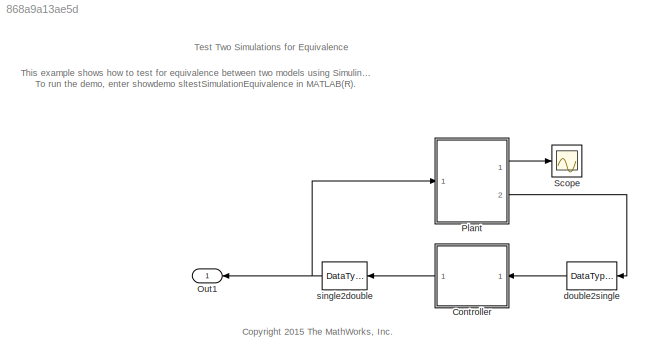
MODEL slx_868a9a13ae5d
KIND model
CONFIG AbsTol = auto
CONFIG FixedStep = 0.01
CONFIG MaxStep = auto
CONFIG MinStep = auto
CONFIG RelTol = 1e-3
CONFIG SampleTimeConstraint = Unconstrained
CONFIG Solver = ode3
CONFIG SolverMode = Auto
CONFIG SolverName = ode3
CONFIG StartTime = 0.0
CONFIG StopTime = 10
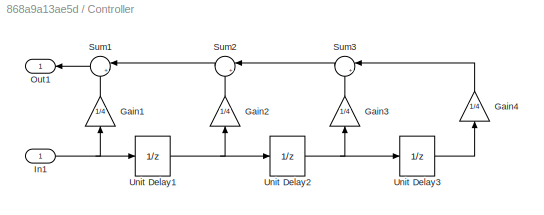
BLOCK [SubSystem] Controller
  PermitHierarchicalResolution = ExplicitOnly
  Ports = [1, 1]
  RTWFcnNameOpts = Use subsystem name
  RTWFileNameOpts = Use function name
  RequestExecContextInheritance = off
  TreatAsAtomicUnit = on
  Variant = off
BLOCK [Gain] Controller/Gain1
  Gain = 1/4
  OutDataTypeStr = Inherit: Inherit via internal rule
BLOCK [Gain] Controller/Gain2
  Gain = 1/4
  OutDataTypeStr = Inherit: Inherit via internal rule
BLOCK [Gain] Controller/Gain3
  Gain = 1/4
  OutDataTypeStr = Inherit: Inherit via internal rule
BLOCK [Gain] Controller/Gain4
  Gain = 1/4
  OutDataTypeStr = Inherit: Inherit via internal rule
BLOCK [Inport] Controller/In1
  IconDisplay = Port number
  SampleTime = .01
BLOCK [Outport] Controller/Out1
  IconDisplay = Port number
BLOCK [Sum] Controller/Sum1
  IconShape = round
  Inputs = |++
  Ports = [2, 1]
BLOCK [Sum] Controller/Sum2
  IconShape = round
  Inputs = |++
  Ports = [2, 1]
BLOCK [Sum] Controller/Sum3
  IconShape = round
  Inputs = |++
  Ports = [2, 1]
BLOCK [UnitDelay] Controller/Unit Delay1
  SampleTime = -1
BLOCK [UnitDelay] Controller/Unit Delay2
  SampleTime = -1
BLOCK [UnitDelay] Controller/Unit Delay3
  SampleTime = -1
BLOCK [Outport] Out1
  IconDisplay = Port number
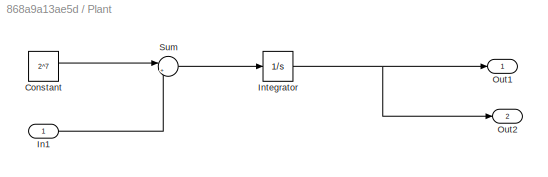
BLOCK [SubSystem] Plant
  PermitHierarchicalResolution = ExplicitOnly
  Ports = [1, 2]
  RequestExecContextInheritance = off
  Variant = off
BLOCK [Constant] Plant/Constant
  Value = 2^7
BLOCK [Inport] Plant/In1
  IconDisplay = Port number
BLOCK [Integrator] Plant/Integrator
  Ports = [1, 1]
BLOCK [Outport] Plant/Out1
  IconDisplay = Port number
BLOCK [Outport] Plant/Out2
  IconDisplay = Port number
  Port = 2
BLOCK [Sum] Plant/Sum
  IconShape = round
  Inputs = |+-
  Ports = [2, 1]
BLOCK [Scope] Scope
  Ports = [1]
  ScopeSpecificationString = Simulink.scopes.TimeScopeBlockCfg('CurrentConfiguration', extmgr.ConfigurationSet(extmgr.Configuration('Core','General UI',true),extmgr.Configuration('Core','Source UI',true),extmgr.Configuration('Sources','WiredSimulink',true,'DataLoggingSaveFormat','StructureWithTime','DataLoggingLimitDataPoints',true,'DataLoggingDecimation','1'),extmgr.Configuration('Visuals','Time Domain',true,'SerializedDispl...<+1586ch>
BLOCK [DataTypeConversion] double2single
  OutDataTypeStr = single
  RndMeth = Floor
  SaturateOnIntegerOverflow = off
BLOCK [DataTypeConversion] single2double
  OutDataTypeStr = double
  RndMeth = Floor
  SaturateOnIntegerOverflow = off
ANNOTATION (root): This example shows how to test for equivalence between two models using Simulink Test. To run the demo, enter showdemo sltestSimulationEquivalence in MATLAB(R).
ANNOTATION (root): Test Two Simulations for Equivalence
ANNOTATION (root): <copyright redacted>
LINE Controller/Gain1:1 -> Controller/Sum1:2
LINE Controller/Gain2:1 -> Controller/Sum2:2
LINE Controller/Gain3:1 -> Controller/Sum3:2
LINE Controller/Gain4:1 -> Controller/Sum3:1
NET Controller/In1:1 -> Controller/Gain1:1, Controller/Unit Delay1:1
LINE Controller/Sum1:1 -> Controller/Out1:1
LINE Controller/Sum2:1 -> Controller/Sum1:1
LINE Controller/Sum3:1 -> Controller/Sum2:1
NET Controller/Unit Delay1:1 -> Controller/Gain2:1, Controller/Unit Delay2:1
NET Controller/Unit Delay2:1 -> Controller/Gain3:1, Controller/Unit Delay3:1
LINE Controller/Unit Delay3:1 -> Controller/Gain4:1
LINE Controller:1 -> single2double:1
LINE Plant/Constant:1 -> Plant/Sum:1
LINE Plant/In1:1 -> Plant/Sum:2
NET Plant/Integrator:1 -> Plant/Out1:1, Plant/Out2:1
LINE Plant/Sum:1 -> Plant/Integrator:1
LINE Plant:1 -> Scope:1
LINE Plant:2 -> double2single:1
LINE double2single:1 -> Controller:1
NET single2double:1 -> Out1:1, Plant:1
note: NET lines group one-source signal fan-out (src -> all destinations, sorted); 1:1 wires keep LINE
